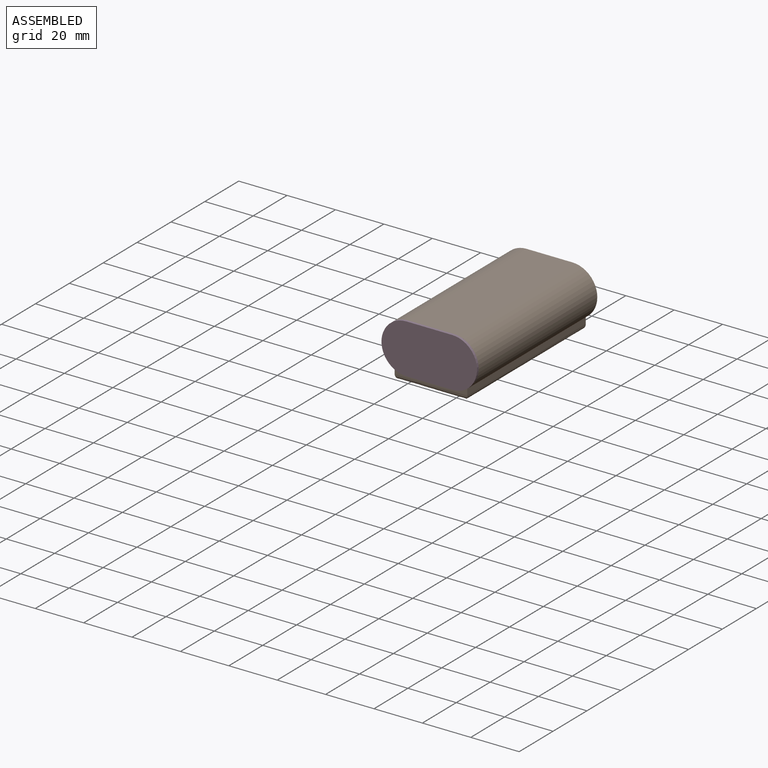
[diagram: assembled view]
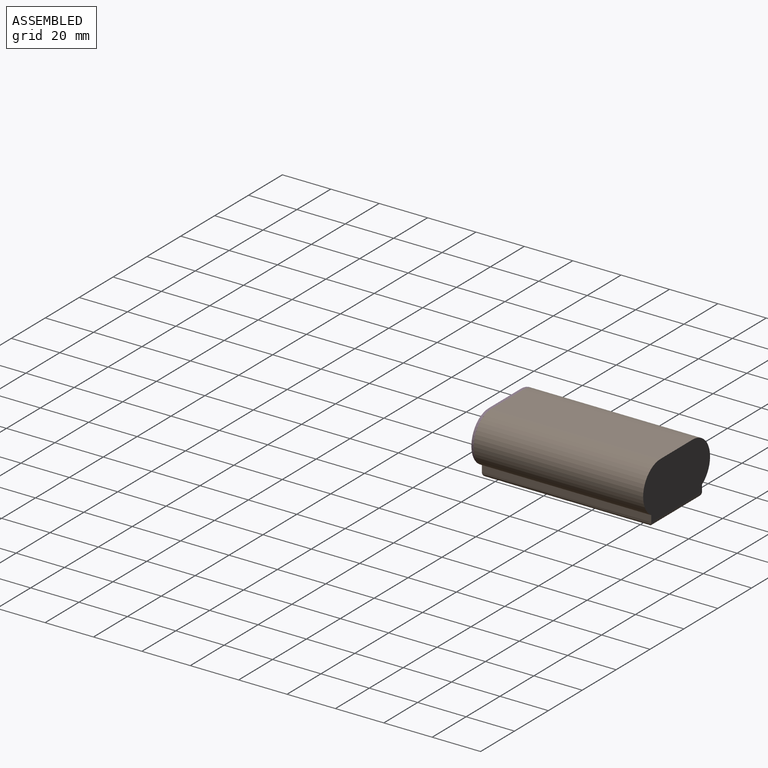
[diagram: assembled view, second angle]
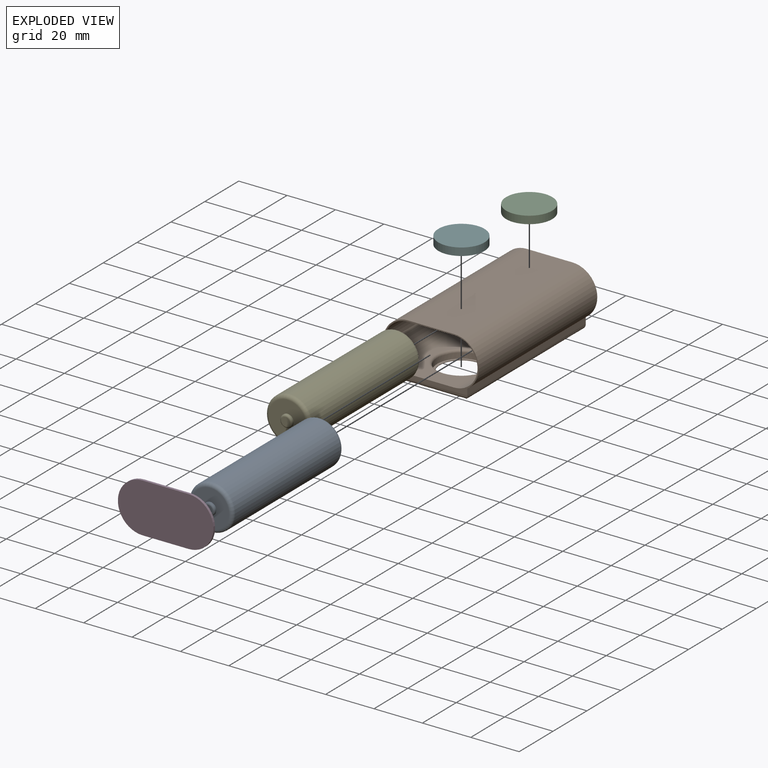
[diagram: exploded view]
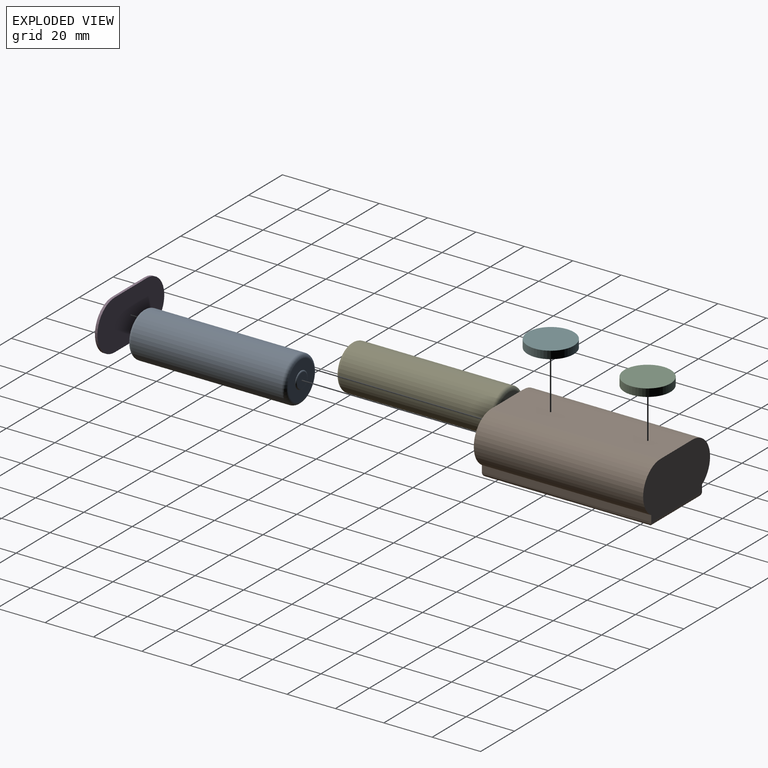
[diagram: exploded view, second angle]
ASSEMBLY  parts=6 mates=4
PART A: 10 faces, bbox 20x20x66.9 mm
  f0: cylinder r=9.25mm len=62.25mm, axis (0,0,-1), area 3618.1mm2, adj f3,f4
  f1: plane 15.45x15.45mm, normal (0,0,1), area 148.9mm2, adj f3,f6
  f2: plane 15.45x15.45mm, normal (0,0,-1), area 167.9mm2, adj f4,f7
  f3: torus R=7.73mm, axis (0,0,1), area 130.8mm2, adj f0,f1
  f4: torus R=7.73mm, axis (0,0,1), area 130.8mm2, adj f0,f2
  f5: plane 6.02x6.02mm, normal (0,0,1), area 28.4mm2, adj f6
  f6: torus R=3.01mm, axis (0,0,-1), area 14.4mm2, adj f1,f5
  f7: cylinder r=2.5mm len=5mm, axis (0,0,1), area 6.8mm2, adj f2,f9
  f8: plane 3.48x3.48mm, normal (0,0,-1), area 9.5mm2, adj f9
  f9: torus R=1.74mm, axis (0,0,-1), area 16.7mm2, adj f7,f8
PART B: 33 faces, bbox 39.5x77x23.5 mm
  f0: plane 19x5.95mm, normal (0,0,1), area 39.7mm2, adj f8,f10,f11,f25
  f1: plane 28.91x19mm, normal (0,0,1), area 402.4mm2, adj f8,f10,f28,f29
  f2: cylinder r=10.25mm len=70mm, axis (0,-1,0), area 1847.7mm2, adj f3,f4,f6,f14
  f3: plane 39.5x21.5mm, normal (0,-1,0), area 86.1mm2, adj f2,f4,f5,f7,f8,f9,f10,f12
  f4: plane 70x19mm, normal (0,0,1), area 1330mm2, adj f2,f3,f5,f6
  f5: cylinder r=10.25mm len=70mm, axis (0,-1,0), area 1847.7mm2, adj f3,f4,f6,f12
  f6: plane 39.5x21.5mm, normal (0,1,0), area 755.2mm2, adj f2,f4,f5,f12,f14,f21
  f7: plane 69.5x19mm, normal (0,0,-1), area 1320.5mm2, adj f3,f8,f10,f11
  f8: cylinder r=9.75mm len=69.5mm, axis (0,-1,0), area 2108.4mm2, adj f0,f1,f3,f7,f9,f11,f27,f31
  f9: plane 19x12.45mm, normal (0,0,1), area 163.2mm2, adj f3,f8,f10,f32
  f10: cylinder r=9.75mm len=69.5mm, axis (0,-1,0), area 2108.4mm2, adj f0,f1,f3,f7,f9,f11,f26,f30
  f11: plane 38.5x19.5mm, normal (0,-1,0), area 669.1mm2, adj f0,f7,f8,f10
  f12: plane 70x2.6mm, normal (-1,0,0), area 182mm2, adj f3,f5,f6,f22
  f13: plane 66x26mm, normal (0,0,-1), area 1207.1mm2, adj f19,f20,f21,f22,f23,f24
  f14: plane 70x2.6mm, normal (1,0,0), area 182mm2, adj f2,f3,f6,f23
  f15: cylinder r=10mm len=20mm, axis (0,0,1), area 142.5mm2, adj f16,f29,f30,f31,f32
  f16: plane 20x20mm, normal (0,0,1), area 59.7mm2, adj f15,f19
  f17: cylinder r=10mm len=20mm, axis (0,0,1), area 142.5mm2, adj f18,f25,f26,f27,f28
  f18: plane 20x20mm, normal (0,0,1), area 59.7mm2, adj f17,f20
  f19: cylinder r=9mm len=18mm, axis (0,0,-1), area 14.1mm2, adj f13,f16
  f20: cylinder r=9mm len=18mm, axis (0,0,-1), area 14.1mm2, adj f13,f18
  f21: bspline ~33x2mm, area 93mm2, adj f6,f13,f22,f23
  f22: bspline ~77x2mm, area 222.8mm2, adj f12,f13,f21,f24
  f23: bspline ~77x2mm, area 222.8mm2, adj f13,f14,f21,f24
  f24: bspline ~33x2mm, area 93mm2, adj f3,f13,f22,f23
  f25: torus R=11mm, axis (0,0,-1), area 33.9mm2, adj f0,f17,f26,f27
  f26: bspline ~14.55x3.35mm, area 16.2mm2, adj f10,f17,f25,f28
  f27: bspline ~14.55x3.35mm, area 16.2mm2, adj f8,f17,f25,f28
  f28: torus R=11mm, axis (0,0,-1), area 33.9mm2, adj f1,f17,f26,f27
  f29: torus R=11mm, axis (0,0,-1), area 33.9mm2, adj f1,f15,f30,f31
  f30: bspline ~14.55x3.35mm, area 16.2mm2, adj f10,f15,f29,f32
  f31: bspline ~14.55x3.35mm, area 16.2mm2, adj f8,f15,f29,f32
  f32: torus R=11mm, axis (0,0,-1), area 33.9mm2, adj f9,f15,f30,f31
PART C: 3 faces, bbox 19.1x19.1x3.2 mm
  f0: cylinder r=9.53mm len=19.05mm, axis (0,0,-1), area 190mm2, adj f1,f2
  f1: plane 19.05x19.05mm, normal (0,0,1), area 285mm2, adj f0
  f2: plane 19.05x19.05mm, normal (0,0,-1), area 285mm2, adj f0
PART D: 6 faces, bbox 39.5x20.5x1 mm
  f0: plane 19x1mm, normal (0,-1,0), area 19mm2, adj f1,f3,f4,f5
  f1: cylinder r=10.25mm len=20.5mm, axis (0,0,-1), area 32.2mm2, adj f0,f2,f4,f5
  f2: plane 19x1mm, normal (0,1,0), area 19mm2, adj f1,f3,f4,f5
  f3: cylinder r=10.25mm len=20.5mm, axis (0,0,-1), area 32.2mm2, adj f0,f2,f4,f5
  f4: plane 39.5x20.5mm, normal (0,0,1), area 719.6mm2, adj f0,f1,f2,f3
  f5: plane 39.5x20.5mm, normal (0,0,-1), area 719.6mm2, adj f0,f1,f2,f3
PART E: same geometry as A
PART F: same geometry as C
PLACE A rot(axis=(-1,0,0),90deg) t=(9.5,1,0)mm
PLACE B at identity fixed
PLACE C rot(axis=(1,0,0),180deg) t=(0,23,-11.41)mm
PLACE D rot(axis=(1,0,0),90deg) t=(0,-35,-10.25)mm
PLACE E rot(axis=(-1,0,0),90deg) t=(-9.5,1,0)mm
PLACE F t=(0,-17,-11.41)mm
MATE fastened E.f0 <-> B.f5  axis (0,-1,0) through (-9.5,1,0)mm
MATE fastened C.f0 <-> B.f20  axis (0,0,-1) through (0,23,-13)mm
MATE fastened B.f19 <-> F.f0  axis (0,0,1) through (0,-17,-13)mm
MATE fastened B.f3 <-> D.f5  axis (0,-1,0) through (0,-35,10.25)mm
